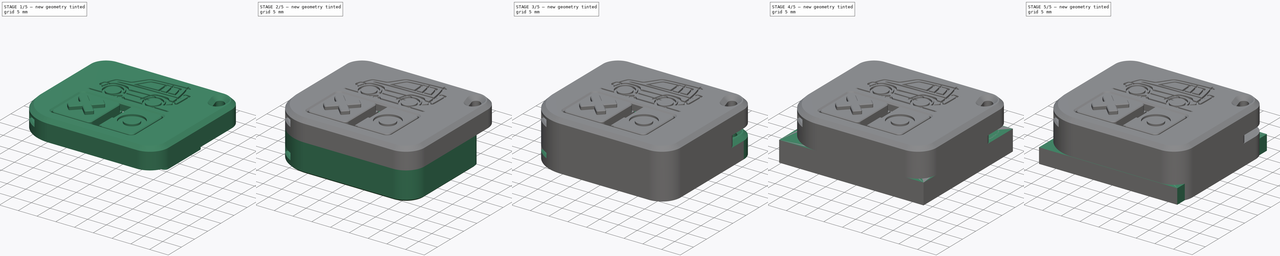
[diagram: build sequence overview — one tinted view per stage of 5, left to right]
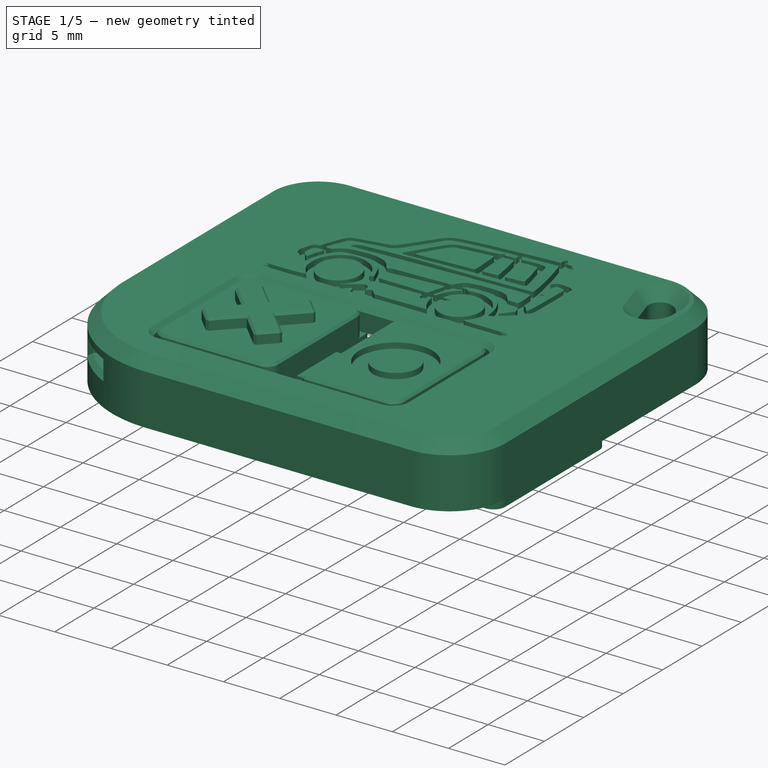
[diagram: stage 1 of 5 — iso view after this stage's code; geometry added in this stage tinted green]
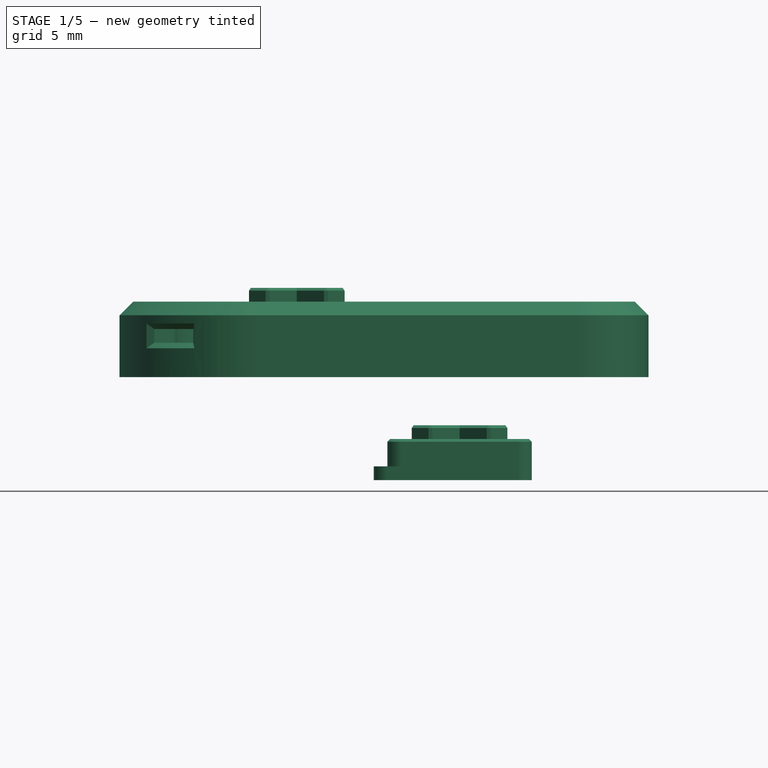
[diagram: stage 1 of 5 — front view after this stage's code; geometry added in this stage tinted green]
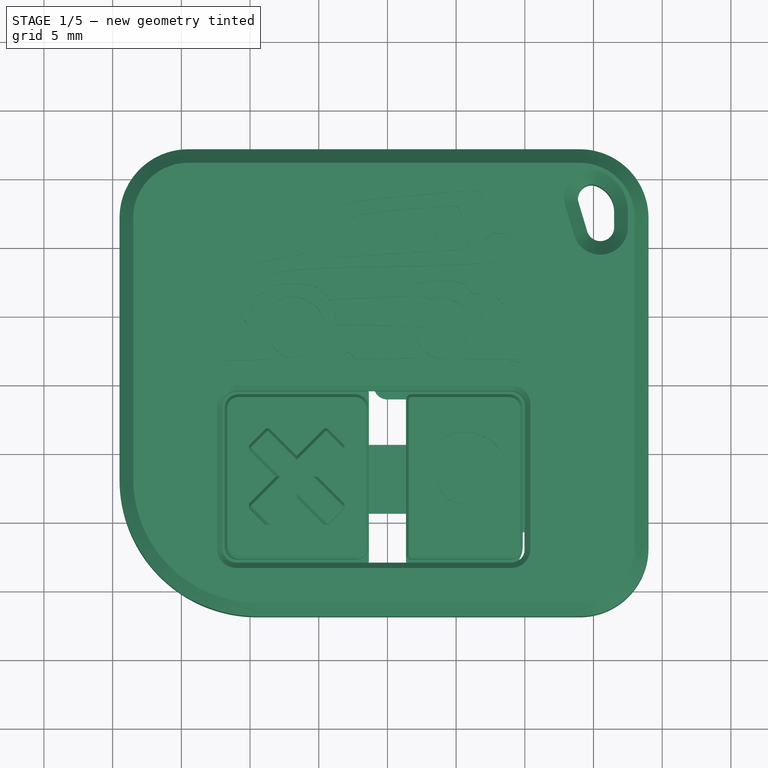
[diagram: stage 1 of 5 — top view after this stage's code; geometry added in this stage tinted green]
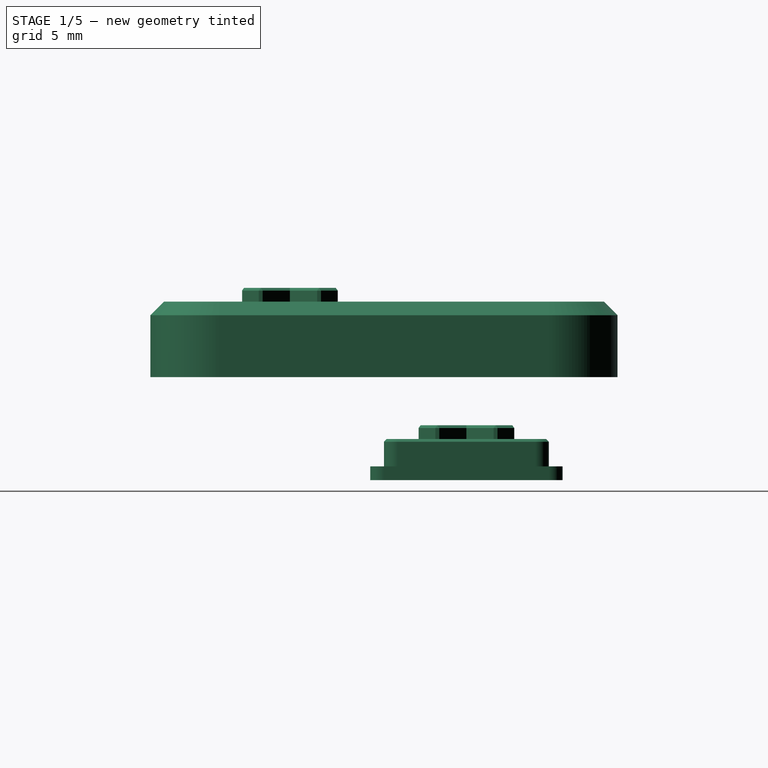
[diagram: stage 1 of 5 — right view after this stage's code; geometry added in this stage tinted green]
FCSTD DOCUMENT  (FreeCAD 0.19R24291 (Git))
Label: key
License: All rights reserved
LicenseURL: http://en.wikipedia.org/wiki/All_rights_reserved
objects: Sketcher::SketchObject×22, PartDesign::Fillet×21, PartDesign::Pad×15, PartDesign::Pocket×12, PartDesign::Chamfer×11, Part::Feature×10, PartDesign::Body×7, Part::Cut×3, PartDesign::FeatureBase×3, Part::Extrusion×2, Part::Box×1, Part::MultiFuse×1
note: 167 computed .brp shape members not serialized (recipe doc carries the construction recipe); baked Part::Feature solids carry a one-line shape summary decoded from their .brp

FEATURE [Sketcher::SketchObject] Sketch015
  FullyConstrained = true
  MapMode = 5
  Support = -> [XY_Plane005]
  sketch-geometry (4):
    g0: LineSegment StartX=0 StartY=0 StartZ=0 EndX=10.5 EndY=0 EndZ=0
    g1: LineSegment StartX=10.5 StartY=0 StartZ=0 EndX=10.5 EndY=12 EndZ=0
    g2: LineSegment StartX=10.5 StartY=12 StartZ=0 EndX=0 EndY=12 EndZ=0
    g3: LineSegment StartX=0 StartY=12 StartZ=0 EndX=0 EndY=0 EndZ=0
  constraints (11):
    c: Coincident(g0,g1)
    c: Coincident(g1,g2)
    c: Coincident(g2,g3)
    c: Coincident(g3,g0)
    c: Horizontal(g0)
    c: Horizontal(g2)
    c: Vertical(g1)
    c: Vertical(g3)
    c: Coincident(g0,g-1)
    c: DistanceX(g2,g2) = 10.5
    c: DistanceY(g1,g1) = 12
FEATURE [PartDesign::Pad] Pad009
  Direction = (1,1,1)
  Length = 2
  Length2 = 100
  Profile = -> Sketch015
  Type = 0
FEATURE [Sketcher::SketchObject] Sketch016
  FullyConstrained = true
  MapMode = 5
  Placement = pos=(0,0,0) rot=(1,0,0;3.14159rad)
  Support = -> [Pad009]
  sketch-geometry (4):
    g0: LineSegment StartX=-1 StartY=1 StartZ=0 EndX=10.5 EndY=1 EndZ=0
    g1: LineSegment StartX=10.5 StartY=1 StartZ=0 EndX=10.5 EndY=-13 EndZ=0
    g2: LineSegment StartX=10.5 StartY=-13 StartZ=0 EndX=-1 EndY=-13 EndZ=0
    g3: LineSegment StartX=-1 StartY=-13 StartZ=0 EndX=-1 EndY=1 EndZ=0
  constraints (12):
    c: Coincident(g0,g1)
    c: Coincident(g1,g2)
    c: Coincident(g2,g3)
    c: Coincident(g3,g0)
    c: Horizontal(g0)
    c: Horizontal(g2)
    c: Vertical(g1)
    c: Vertical(g3)
    c: DistanceX(g0,g-1) = 1
    c: DistanceX(g0,g0) = 11.5
    c: DistanceY(g-1,g0) = 1
    c: DistanceY(g3,g3) = 14
FEATURE [PartDesign::Pad] Pad010
  BaseFeature = -> Pad009
  Direction = (1,1,1)
  Length = 1
  Length2 = 100
  Profile = -> Sketch016
  Reversed = true
  Type = 0
FEATURE [Sketcher::SketchObject] Sketch017
  FullyConstrained = true
  MapMode = 5
  Placement = pos=(0,0,0) rot=(1,0,0;3.14159rad)
  Support = -> [Pad010]
  sketch-geometry (4):
    g0: LineSegment StartX=0.5 StartY=-0.5 StartZ=0 EndX=10 EndY=-0.5 EndZ=0
    g1: LineSegment StartX=10 StartY=-0.5 StartZ=0 EndX=10 EndY=-11.5 EndZ=0
    g2: LineSegment StartX=10 StartY=-11.5 StartZ=0 EndX=0.5 EndY=-11.5 EndZ=0
    g3: LineSegment StartX=0.5 StartY=-11.5 StartZ=0 EndX=0.5 EndY=-0.5 EndZ=0
  constraints (12):
    c: Coincident(g0,g1)
    c: Coincident(g1,g2)
    c: Coincident(g2,g3)
    c: Coincident(g3,g0)
    c: Horizontal(g0)
    c: Horizontal(g2)
    c: Vertical(g1)
    c: Vertical(g3)
    c: DistanceX(g0,g0) = 9.5
    c: DistanceY(g3,g3) = 11
    c: DistanceX(g-1,g0) = 0.5
    c: DistanceY(g0,g-1) = 0.5
FEATURE [PartDesign::Pocket] Pocket006
  BaseFeature = -> Pad010
  Length = 1
  Length2 = 100
  Profile = -> Sketch017
  Refine = true
  Type = 0
FEATURE [PartDesign::Fillet] Fillet019
  Base = -> Pocket006 [Edge8,Edge2,Edge1,Edge5,Edge30,Edge32,Edge29,Edge34,Edge23,Edge22,Edge16,Edge18]
  BaseFeature = -> Pocket006
  Radius = 1
  SupportTransform = false
FEATURE [PartDesign::Chamfer] Chamfer010
  Angle = 45
  Base = -> Fillet019 [Face26]
  BaseFeature = -> Fillet019
  ChamferType = 0
  FlipDirection = false
  Size = 0.2
  Size2 = 1
  SupportTransform = false
FEATURE [Sketcher::SketchObject] Sketch018
  ExternalGeometry = -> [Chamfer010]
  FullyConstrained = true
  MapMode = 5
  Placement = pos=(0,0,2) rot=(0,0,1;0rad)
  Support = -> [Chamfer010]
  sketch-geometry (1):
    g0: Circle CenterX=5.5 CenterY=6 CenterZ=0 NormalX=0 NormalY=0 NormalZ=1 AngleXU=0 Radius=1.5
  constraints (3):
    c: Radius(g0) = 1.5
    c: DistanceY(g0,g-3) = 6
    c: DistanceX(g-1,g0) = 5.5
FEATURE [PartDesign::Pad] Pad011
  BaseFeature = -> Chamfer010
  Direction = (1,1,1)
  Length = 2.5
  Length2 = 100
  Profile = -> Sketch018
  Refine = true
  Reversed = true
  Type = 0
FEATURE [Sketcher::SketchObject] Sketch019
  FullyConstrained = true
  MapMode = 5
  Placement = pos=(0,0,2) rot=(0,0,1;0rad)
  Support = -> [Pad011]
  sketch-geometry (12):
    g0: LineSegment StartX=3.12868 StartY=9.62132 StartZ=0 EndX=1.62868 EndY=8.12132 EndZ=0
    g1: LineSegment StartX=1.62868 StartY=8.12132 StartZ=0 EndX=3.75 EndY=6 EndZ=0
    g2: LineSegment StartX=3.75 StartY=6 StartZ=0 EndX=1.62868 EndY=3.87868 EndZ=0
    g3: LineSegment StartX=1.62868 StartY=3.87868 StartZ=0 EndX=3.12868 EndY=2.37868 EndZ=0
    g4: LineSegment StartX=3.12868 StartY=2.37868 StartZ=0 EndX=5.25 EndY=4.5 EndZ=0
    g5: LineSegment StartX=5.25 StartY=4.5 StartZ=0 EndX=7.37132 EndY=2.37868 EndZ=0
    g6: LineSegment StartX=7.37132 StartY=2.37868 StartZ=0 EndX=8.87132 EndY=3.87868 EndZ=0
    g7: LineSegment StartX=8.87132 StartY=3.87868 StartZ=0 EndX=6.75 EndY=6 EndZ=0
    g8: LineSegment StartX=6.75 StartY=6 StartZ=0 EndX=8.87132 EndY=8.12132 EndZ=0
    g9: LineSegment StartX=8.87132 StartY=8.12132 StartZ=0 EndX=7.37132 EndY=9.62132 EndZ=0
    g10: LineSegment StartX=7.37132 StartY=9.62132 StartZ=0 EndX=5.25 EndY=7.5 EndZ=0
    g11: LineSegment StartX=5.25 StartY=7.5 StartZ=0 EndX=3.12868 EndY=9.62132 EndZ=0
  constraints (36):
    c: Coincident(g0,g1)
    c: Coincident(g1,g2)
    c: Coincident(g2,g3)
    c: Coincident(g3,g4)
    c: Coincident(g4,g5)
    c: Coincident(g5,g6)
    c: Coincident(g6,g7)
    c: Coincident(g7,g8)
    c: Coincident(g8,g9)
    c: Coincident(g9,g10)
    c: Coincident(g10,g11)
    c: Coincident(g11,g0)
    c: Parallel(g7,g11)
    c: Parallel(g11,g5)
    c: Parallel(g5,g1)
    c: Parallel(g2,g4)
    c: Parallel(g4,g10)
    c: Parallel(g10,g8)
    c: Parallel(g3,g9)
    c: Parallel(g0,g6)
    c: Perpendicular(g10,g11)
    c: Perpendicular(g11,g0)
    c: Perpendicular(g9,g10)
    c: Equal(g11,g1)
    c: Equal(g1,g2)
    c: Equal(g2,g4)
    c: Equal(g4,g5)
    c: Equal(g5,g7)
    c: Equal(g7,g8)
    c: Equal(g8,g10)
    c: Equal(g3,g6)
    c: Horizontal(g1,g7)
    c: DistanceY(g4,g10) = 3
    c: Distance(g2) = 3
    c: DistanceX(g-1,g4) = 5.25
    c: DistanceY(g-1,g1) = 6
FEATURE [PartDesign::Pocket] Pocket007
  BaseFeature = -> Pad011
  Length = 0.5
  Length2 = 100
  Profile = -> Sketch019
  Type = 0
FEATURE [PartDesign::Pad] Pad015
  BaseFeature = -> Pocket007
  Direction = (1,1,1)
  Length = 1
  Length2 = 100
  Profile = -> Pocket007 [Face12,Face11,Face48,Face34,Face3,Face10,Face30,Face31,Face32,Face33]
  Type = 0
FEATURE [PartDesign::Body] Body001005  label="open-btn"
  Group = -> [Sketch011,Pad006,Sketch012,Pad007,Sketch013,Pocket005,Fillet014,Fillet015,Fillet016,Fillet017,Fillet018,Sketch014,Pad008,Chamfer011,Sketch020,Pocket008,Pad016,Pocket012]
  Origin = -> Origin004
  Placement = pos=(1.35,-12.85,10) rot=(0,0,1;0rad)
  Tip = -> Pocket012
FEATURE [PartDesign::Pocket] Pocket013
  BaseFeature = -> Pad015
  Length = 0.5
  Length2 = 100
  Profile = -> Pad015 [Face69]
  Refine = true
  Type = 0
FEATURE [PartDesign::Body] Body001010002  label="back-casing-mitsubishi"
  BaseFeature = -> Chamfer013
  Group = -> [Clone,Sketch029,Pocket015]
  Origin = -> Origin008
  Tip = -> Pocket015
FEATURE [Part::Feature] Body001010003  label="front-casing001"
  Placement = pos=(0,0,7.5) rot=(0,0,1;0rad)
  shape: bbox 38.5 x 34 x 6.005 mm, 103 faces (baked)
FEATURE [Part::Cut] Cut002  label="front-casing-pajero-mini"
  Base = -> Body001010003
  Tool = -> pajeromini_icon_6_001001_solid
FEATURE [PartDesign::Pad] Pad017
  BaseFeature = -> Pocket013
  Direction = (1,1,1)
  Length = 1.5
  Length2 = 100
  Profile = -> Pocket013 [Face35]
  Type = 0
FEATURE [PartDesign::Chamfer] Chamfer018
  Angle = 45
  Base = -> Pad017 [Face49,Edge107,Edge109,Edge113,Edge115,Edge119,Edge121,Edge104,Edge102]
  BaseFeature = -> Pad017
  ChamferType = 0
  FlipDirection = false
  Size = 0.2
  Size2 = 1
  SupportTransform = false
FEATURE [PartDesign::Body] Body001006  label="close-btn"
  Group = -> [Sketch015,Pad009,Sketch016,Pad010,Sketch017,Pocket006,Fillet019,Chamfer010,Sketch018,Pad011,Sketch019,Pocket007,Pad015,Pocket013,Pad017,Chamfer018]
  Origin = -> Origin005
  Placement = pos=(-11.85,-12.85,10) rot=(0,0,1;0rad)
  Tip = -> Chamfer018
FEATURE [Part::Feature] Body001005001  label="open-btn001"
  Placement = pos=(1.35,-12.85,10) rot=(0,0,1;0rad)
  shape: bbox 9.5 x 14 x 3 mm, 54 faces (baked)
FEATURE [Part::Feature] Body001006001  label="close-btn001"
  Placement = pos=(-11.85,-12.85,10) rot=(0,0,1;0rad)
  shape: bbox 11.5 x 14 x 4 mm, 78 faces (baked)
FEATURE [Part::Box] Box  label="Cube"
  AttacherType = Attacher::AttachEngine3D
  Height = 1
  Length = 3
  Placement = pos=(-1.5,-9.5,10) rot=(0,0,1;0rad)
  Width = 5
FEATURE [Part::MultiFuse] Fusion  label="button-combined"
  Refine = true
  Shapes = -> [Box,Body001006001,Body001005001]
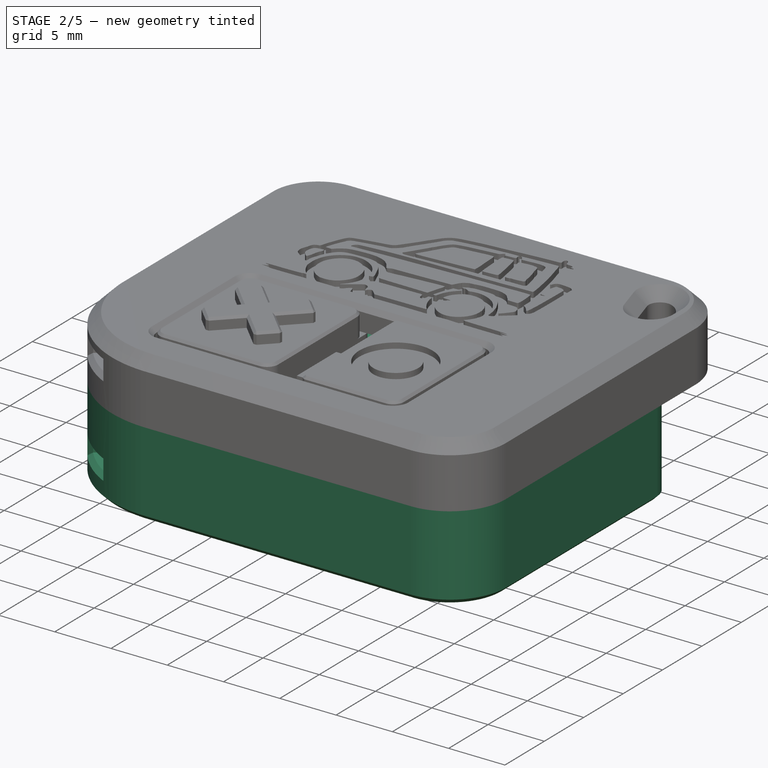
[diagram: stage 2 of 5 — iso view after this stage's code; geometry added in this stage tinted green]
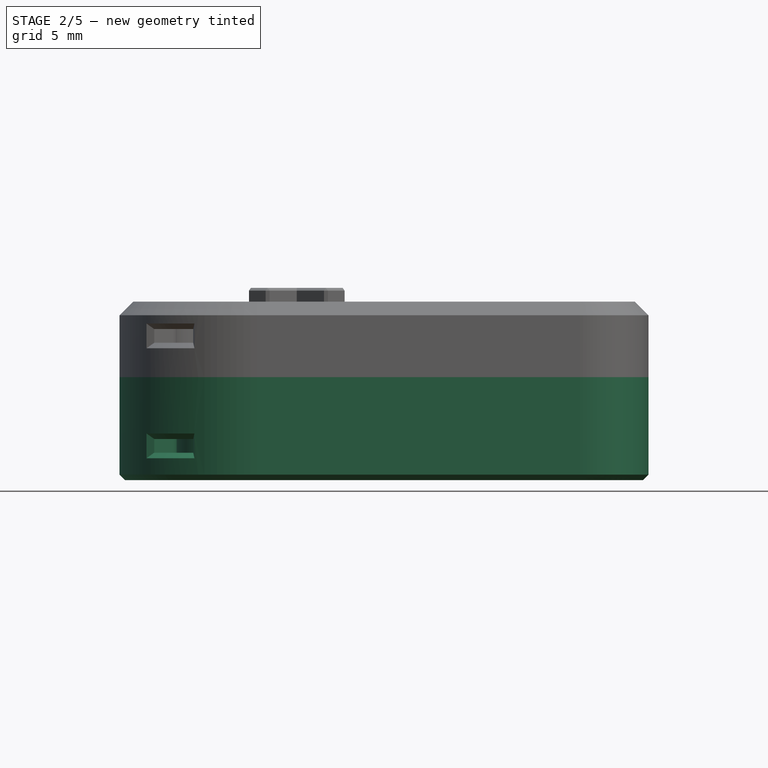
[diagram: stage 2 of 5 — front view after this stage's code; geometry added in this stage tinted green]
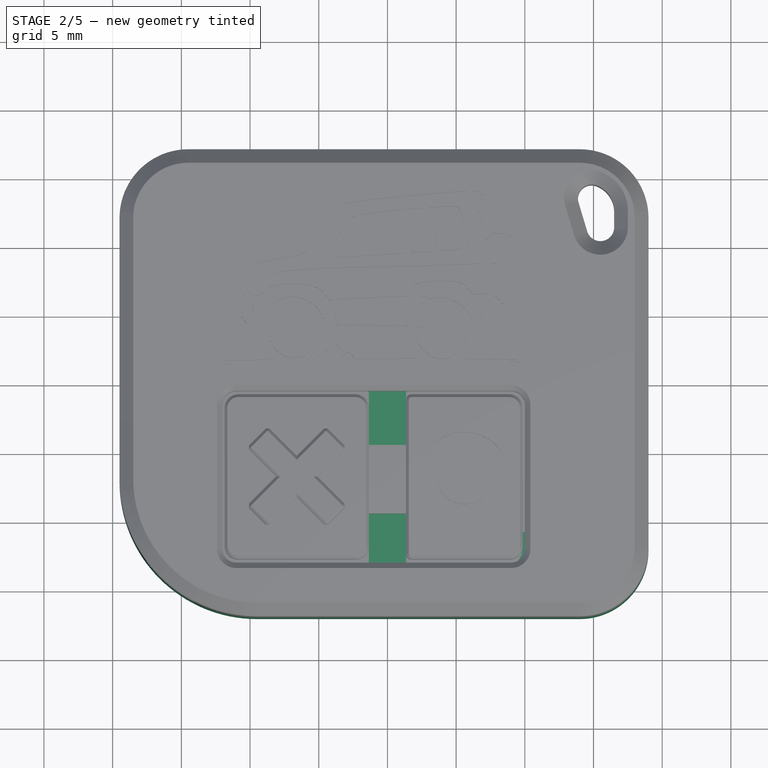
[diagram: stage 2 of 5 — top view after this stage's code; geometry added in this stage tinted green]
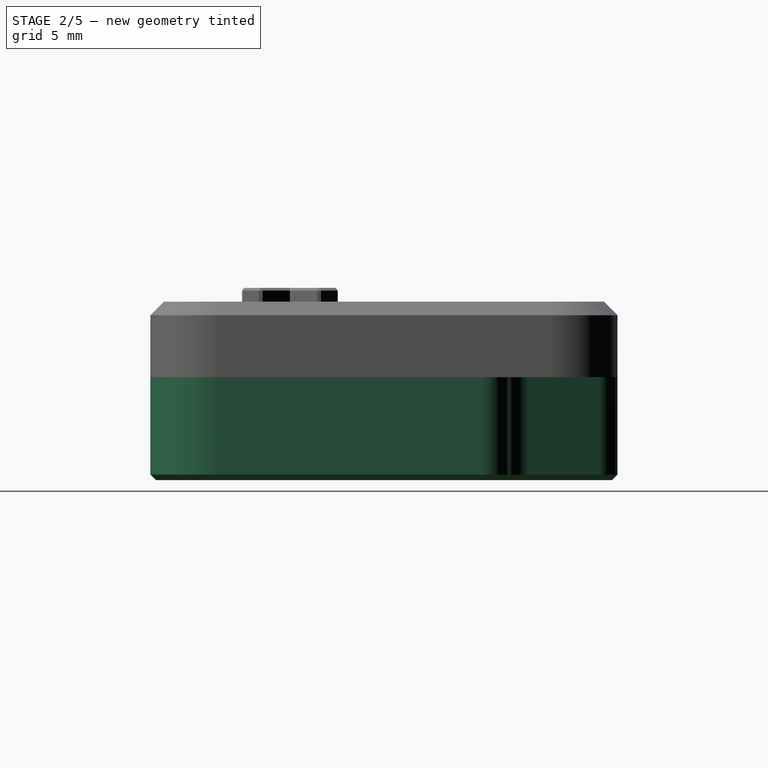
[diagram: stage 2 of 5 — right view after this stage's code; geometry added in this stage tinted green]
FEATURE [Part::Feature] Cut_cs  label="hole-profile"
  shape: bbox 30.95 x 28.2 x 3e-07 mm, 0 faces, 0 solids (baked)
FEATURE [Part::Feature] Cut_cs001  label="hole-profile001"
  shape: bbox 30.95 x 28.2 x 3e-07 mm, 0 faces, 0 solids (baked)
FEATURE [Part::Extrusion] Extrude
  Base = -> Cut_cs001
  Dir = (0,0,1)
  DirMode = 2
  FaceMakerClass = Part::FaceMakerBullseye
  LengthFwd = 5.5
  LengthRev = 0
  Placement = pos=(0,0,2) rot=(0,0,1;0rad)
  Solid = true
  Symmetric = false
FEATURE [PartDesign::Body] Body001  label="casing-common"
  Group = -> [Sketch002,Pad002,Fillet005,Fillet006,Fillet007,Fillet008,Fillet009]
  Origin = -> Origin001
  Tip = -> Fillet009
FEATURE [Part::Feature] Cut_cs002  label="hole-profile002"
  shape: bbox 30.95 x 28.2 x 3e-07 mm, 0 faces, 0 solids (baked)
FEATURE [Part::Extrusion] Extrude001
  Base = -> Cut_cs002
  Dir = (0,0,1)
  DirMode = 2
  FaceMakerClass = Part::FaceMakerBullseye
  LengthFwd = 3.5
  LengthRev = 0
  Solid = true
  Symmetric = false
FEATURE [Part::Feature] Body001007  label="casing-common003"
  shape: bbox 38.5 x 34 x 8.418 mm, 17 faces (baked)
FEATURE [Part::Cut] Cut  label="back-base"
  Base = -> Body001007
  Tool = -> Extrude
FEATURE [Part::Feature] Body001008  label="casing-common004"
  shape: bbox 38.5 x 34 x 6.173 mm, 17 faces (baked)
FEATURE [PartDesign::FeatureBase] BaseFeature
  BaseFeature = -> Cut
FEATURE [Sketcher::SketchObject] Sketch021
  ExternalGeometry = -> [BaseFeature]
  FullyConstrained = true
  MapMode = 5
  Placement = pos=(0,0,0) rot=(1,0,0;3.14159rad)
  Support = -> [BaseFeature]
  sketch-geometry (7):
    g0: ArcOfCircle CenterX=14 CenterY=-12 CenterZ=0 NormalX=0 NormalY=0 NormalZ=1 AngleXU=0 Radius=5 StartAngle=4.71239 EndAngle=6.28319
    g1: LineSegment StartX=14.5422 StartY=-11.0261 StartZ=0 EndX=13.9069 EndY=-13.1438 EndZ=0
    g2: LineSegment StartX=13.9069 StartY=-13.1438 StartZ=0 EndX=12.75 EndY=-17 EndZ=0
    g3: LineSegment StartX=12.75 StartY=-17 StartZ=0 EndX=14 EndY=-17 EndZ=0
    g4: LineSegment StartX=14.5422 StartY=-11.0261 StartZ=0 EndX=15.1169 EndY=-9.11044 EndZ=0
    g5: LineSegment StartX=15.1169 StartY=-9.11044 StartZ=0 EndX=19 EndY=-9.11044 EndZ=0
    g6: LineSegment StartX=19 StartY=-9.11044 StartZ=0 EndX=19 EndY=-12 EndZ=0
  constraints (18):
    c: Coincident(g0,g-6)
    c: Coincident(g0,g-6)
    c: Coincident(g0,g-6)
    c: Coincident(g1,g-3)
    c: Coincident(g1,g-3)
    c: Coincident(g2,g1)
    c: PointOnObject(g2,g-5)
    c: Parallel(g2,g1)
    c: Coincident(g3,g2)
    c: Coincident(g3,g0)
    c: Coincident(g4,g1)
    c: Coincident(g5,g4)
    c: PointOnObject(g5,g-4)
    c: Coincident(g6,g5)
    c: Coincident(g6,g0)
    c: Parallel(g1,g4)
    c: Distance(g4) = 2
    c: Horizontal(g5)
FEATURE [PartDesign::Pocket] Pocket
  BaseFeature = -> BaseFeature
  Length = 5
  Length2 = 100
  Profile = -> Sketch021
  Type = 1
FEATURE [PartDesign::Fillet] Fillet020
  Base = -> Pocket [Edge24,Edge31,Edge26]
  BaseFeature = -> Pocket
  Radius = 2
  SupportTransform = false
FEATURE [Sketcher::SketchObject] Sketch022
  ExternalGeometry = -> [Fillet020]
  FullyConstrained = true
  MapMode = 5
  Placement = pos=(0,0,0) rot=(1,0,0;3.14159rad)
  Support = -> [Fillet020]
  sketch-geometry (4):
    g0: Circle CenterX=14.5 CenterY=13 CenterZ=0 NormalX=0 NormalY=0 NormalZ=1 AngleXU=0 Radius=1.15
    g1: Circle CenterX=14.5 CenterY=13 CenterZ=0 NormalX=0 NormalY=0 NormalZ=1 AngleXU=0 Radius=2.5
    g2: Circle CenterX=-15.5 CenterY=-13 CenterZ=0 NormalX=0 NormalY=0 NormalZ=1 AngleXU=0 Radius=2.5
    g3: Circle CenterX=-15.5 CenterY=-13 CenterZ=0 NormalX=0 NormalY=0 NormalZ=1 AngleXU=0 Radius=1.15
  constraints (8):
    c: Coincident(g0,g-3)
    c: Coincident(g1,g0)
    c: Coincident(g2,g-4)
    c: Coincident(g3,g2)
    c: Radius(g3) = 1.15
    c: Radius(g2) = 2.5
    c: Equal(g3,g0)
    c: Equal(g2,g1)
FEATURE [PartDesign::Pad] Pad012
  BaseFeature = -> Fillet020
  Direction = (1,1,1)
  Length = 10
  Length2 = 100
  Profile = -> Sketch022
  Reversed = true
  Type = 3
  UpToFace = -> Fillet020 [Face18]
FEATURE [Sketcher::SketchObject] Sketch023
  ExternalGeometry = -> [Pad012]
  FullyConstrained = true
  MapMode = 5
  Placement = pos=(0,0,0) rot=(1,0,0;3.14159rad)
  Support = -> [Pad012]
  sketch-geometry (2):
    g0: Circle CenterX=14.5 CenterY=13 CenterZ=0 NormalX=0 NormalY=0 NormalZ=1 AngleXU=0 Radius=2
    g1: Circle CenterX=-15.5 CenterY=-13 CenterZ=0 NormalX=0 NormalY=0 NormalZ=1 AngleXU=0 Radius=2
  constraints (4):
    c: Coincident(g0,g-4)
    c: Coincident(g1,g-3)
    c: Radius(g1) = 2
    c: Equal(g1,g0)
FEATURE [PartDesign::Pocket] Pocket009
  BaseFeature = -> Pad012
  Length = 2.5
  Length2 = 100
  Profile = -> Sketch023
  Refine = true
  Type = 0
FEATURE [PartDesign::Chamfer] Chamfer012
  Angle = 45
  Base = -> Pocket009 [Face12,Edge42,Edge47]
  BaseFeature = -> Pocket009
  ChamferType = 0
  FlipDirection = false
  Size = 0.4
  Size2 = 1
  SupportTransform = false
FEATURE [Sketcher::SketchObject] Sketch024
  FullyConstrained = true
  MapMode = 5
  Placement = pos=(0,0,2) rot=(0,0,1;0rad)
  Support = -> [Chamfer012]
  sketch-geometry (3):
    g0: LineSegment StartX=0 StartY=0 StartZ=0 EndX=-19.8338 EndY=-15.219 EndZ=0
    g1: LineSegment StartX=-19.8338 StartY=-15.219 StartZ=0 EndX=-16.8898 EndY=-18.4319 EndZ=0
    g2: LineSegment StartX=-16.8898 StartY=-18.4319 StartZ=0 EndX=0 EndY=0 EndZ=0
  constraints (8):
    c: Coincident(g-1,g0)
    c: Coincident(g0,g1)
    c: Coincident(g1,g2)
    c: Coincident(g2,g0)
    c: Equal(g0,g2)
    c: Angle(g0,g2) = 0.174533
    c: Angle(g0,g-1) = 2.48709
    c: Distance(g0) = 25
FEATURE [PartDesign::Pocket] Pocket010
  BaseFeature = -> Chamfer012
  Length = 1
  Length2 = 100
  Profile = -> Sketch024
  Refine = true
  Reversed = true
  Type = 0
FEATURE [PartDesign::Fillet] Fillet021
  Base = -> Pocket010 [Edge107,Edge105]
  BaseFeature = -> Pocket010
  Radius = 1
  SupportTransform = false
FEATURE [PartDesign::Chamfer] Chamfer013
  Angle = 45
  Base = -> Fillet021 [Edge69,Edge13,Edge73,Edge37]
  BaseFeature = -> Fillet021
  ChamferType = 0
  FlipDirection = false
  Size = 0.4
  Size2 = 1
  SupportTransform = false
FEATURE [PartDesign::Body] Body001010  label="front-casing"
  BaseFeature = -> Cut001
  Group = -> [BaseFeature001,Sketch025,Pad013,Sketch026,Pad014,Fillet022,Sketch027,Pocket011,Fillet023,Chamfer014,Chamfer015,Chamfer016,Sketch028,Pocket014,Fillet024,Chamfer017]
  Origin = -> Origin007
  Placement = pos=(0,0,7.5) rot=(0,0,1;0rad)
  Tip = -> Chamfer017
FEATURE [PartDesign::FeatureBase] Clone
  BaseFeature = -> Chamfer013
FEATURE [Sketcher::SketchObject] Sketch029
  FullyConstrained = true
  MapMode = 5
  Placement = pos=(0,0,0) rot=(1,0,0;3.14159rad)
  Support = -> [Clone]
  sketch-geometry (18):
    g0: Circle CenterX=0 CenterY=0 CenterZ=0 NormalX=0 NormalY=0 NormalZ=1 AngleXU=0 Radius=12.5
    g1: Circle CenterX=0 CenterY=0 CenterZ=0 NormalX=0 NormalY=0 NormalZ=1 AngleXU=0 Radius=6.5
    g2: Circle CenterX=0 CenterY=0 CenterZ=0 NormalX=0 NormalY=0 NormalZ=1 AngleXU=0 Radius=0.1
    g3: LineSegment StartX=0 StartY=0 StartZ=0 EndX=0 EndY=-0.1 EndZ=0
    g4: LineSegment StartX=0 StartY=-0.1 StartZ=0 EndX=0 EndY=-6.5 EndZ=0
    g5: LineSegment StartX=0 StartY=-6.5 StartZ=0 EndX=0 EndY=-12.5 EndZ=0
    g6: LineSegment StartX=-0.1 StartY=0 StartZ=0 EndX=-6.5 EndY=0 EndZ=0
    g7: LineSegment StartX=0.1 StartY=0 StartZ=0 EndX=6.5 EndY=0 EndZ=0
    g8: LineSegment StartX=-6.5 StartY=0 StartZ=0 EndX=-11.1827 EndY=5.58536 EndZ=0
    g9: LineSegment StartX=-11.1827 StartY=5.58536 StartZ=0 EndX=-3.32471 EndY=5.58536 EndZ=0
    g10: LineSegment StartX=-0.1 StartY=0 StartZ=0 EndX=-3.32471 EndY=5.58536 EndZ=0
    g11: LineSegment StartX=0.1 StartY=0 StartZ=0 EndX=3.32471 EndY=5.58536 EndZ=0
    g12: LineSegment StartX=3.32471 StartY=5.58536 StartZ=0 EndX=11.1827 EndY=5.58536 EndZ=0
    g13: LineSegment StartX=11.1827 StartY=5.58536 StartZ=0 EndX=6.5 EndY=0 EndZ=0
    g14: LineSegment StartX=0 StartY=-0.1 StartZ=0 EndX=-3.2066 EndY=-5.654 EndZ=0
    g15: LineSegment StartX=0 StartY=-0.1 StartZ=0 EndX=3.2066 EndY=-5.654 EndZ=0
    g16: LineSegment StartX=-3.2066 StartY=-5.654 StartZ=0 EndX=0 EndY=-12.5 EndZ=0
    g17: LineSegment StartX=0 StartY=-12.5 StartZ=0 EndX=3.2066 EndY=-5.654 EndZ=0
  constraints (49):
    c: Coincident(g0,g-1)
    c: Coincident(g1,g-1)
    c: Coincident(g2,g-1)
    c: Radius(g2) = 0.1
    c: Radius(g0) = 12.5
    c: Radius(g1) = 6.5
    c: Coincident(g3,g-1)
    c: PointOnObject(g3,g2)
    c: Coincident(g4,g3)
    c: PointOnObject(g4,g1)
    c: Coincident(g5,g4)
    c: PointOnObject(g5,g0)
    c: Vertical(g5)
    c: Vertical(g3)
    c: Vertical(g4)
    c: PointOnObject(g6,g2)
    c: PointOnObject(g6,g1)
    c: Horizontal(g6)
    c: PointOnObject(g7,g2)
    c: PointOnObject(g7,g1)
    c: Horizontal(g7)
    c: Coincident(g8,g6)
    c: PointOnObject(g8,g0)
    c: Coincident(g9,g8)
    c: PointOnObject(g9,g1)
    c: Coincident(g10,g6)
    c: Coincident(g10,g9)
    c: Coincident(g11,g7)
    c: PointOnObject(g11,g1)
    c: Coincident(g12,g11)
    c: PointOnObject(g12,g0)
    c: Coincident(g13,g12)
    c: Coincident(g13,g7)
    c: Coincident(g14,g3)
    c: PointOnObject(g14,g1)
    c: Coincident(g15,g14)
    c: PointOnObject(g15,g1)
    c: Coincident(g16,g14)
    c: Coincident(g16,g5)
    c: Coincident(g17,g16)
    c: Coincident(g17,g15)
    c: Horizontal(g9)
    c: Horizontal(g12)
    c: Horizontal(g6,g-1)
    c: Horizontal(g7,g-1)
    c: Horizontal(g11,g9)
    c: Parallel(g11,g14)
    c: Equal(g14,g15)
    c: Angle(g-1,g11) = 1.0472
FEATURE [PartDesign::Pocket] Pocket015
  BaseFeature = -> Clone
  Length = 0.5
  Length2 = 100
  Profile = -> Sketch029
  Type = 0
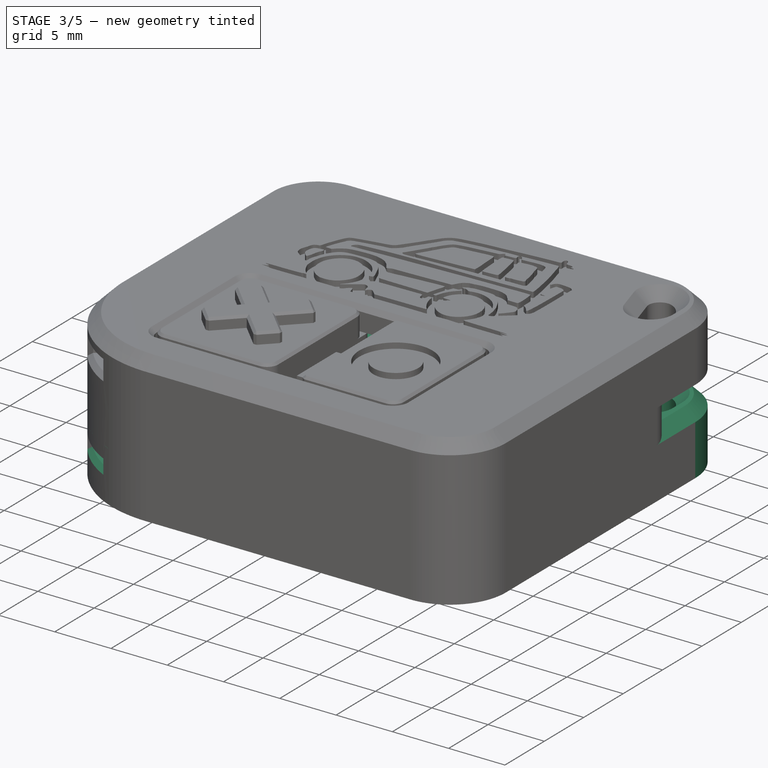
[diagram: stage 3 of 5 — iso view after this stage's code; geometry added in this stage tinted green]
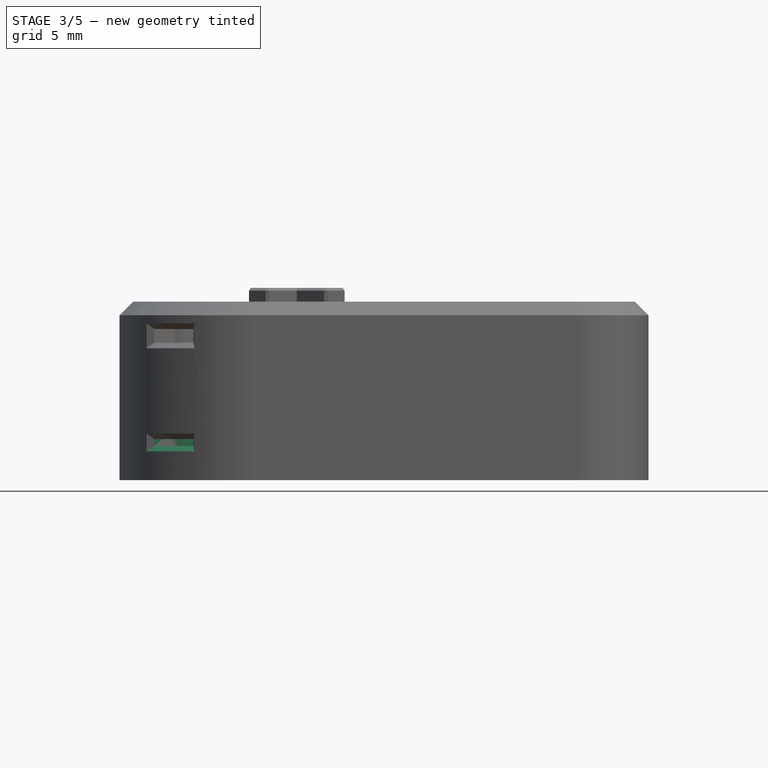
[diagram: stage 3 of 5 — front view after this stage's code; geometry added in this stage tinted green]
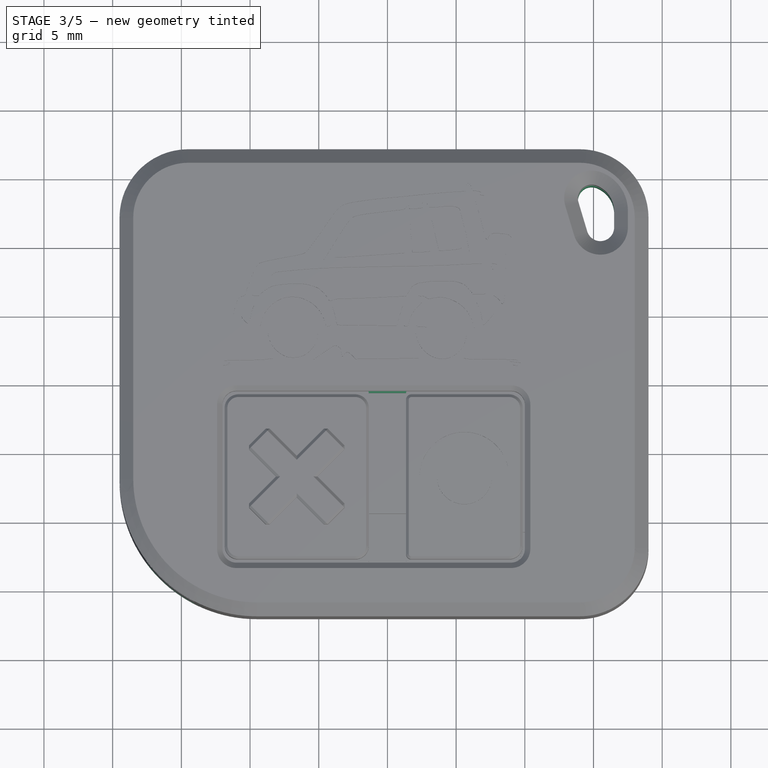
[diagram: stage 3 of 5 — top view after this stage's code; geometry added in this stage tinted green]
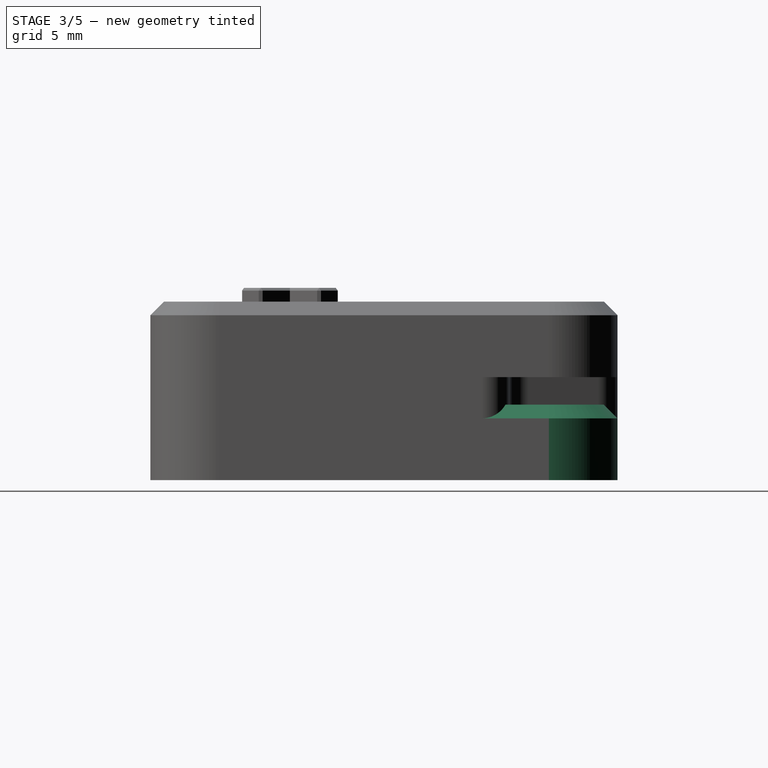
[diagram: stage 3 of 5 — right view after this stage's code; geometry added in this stage tinted green]
FEATURE [PartDesign::Body] Body001009  label="back-casing"
  BaseFeature = -> Cut
  Group = -> [BaseFeature,Sketch021,Pocket,Fillet020,Sketch022,Pad012,Sketch023,Pocket009,Chamfer012,Sketch024,Pocket010,Fillet021,Chamfer013]
  Origin = -> Origin006
  Tip = -> Chamfer013
FEATURE [Part::Cut] Cut001  label="front-base"
  Base = -> Body001008
  Tool = -> Extrude001
FEATURE [PartDesign::FeatureBase] BaseFeature001
  BaseFeature = -> Cut001
FEATURE [Sketcher::SketchObject] Sketch025
  ExternalGeometry = -> [BaseFeature001]
  FullyConstrained = true
  MapMode = 5
  Placement = pos=(0,0,5.5) rot=(0,0,1;0rad)
  Support = -> [BaseFeature001]
  sketch-geometry (2):
    g0: Circle CenterX=-15.5 CenterY=13 CenterZ=0 NormalX=0 NormalY=0 NormalZ=1 AngleXU=0 Radius=2.5
    g1: Circle CenterX=14.5 CenterY=-13 CenterZ=0 NormalX=0 NormalY=0 NormalZ=1 AngleXU=0 Radius=2.5
  constraints (4):
    c: Coincident(g0,g-3)
    c: Coincident(g1,g-4)
    c: Radius(g0) = 2.5
    c: Equal(g0,g1)
FEATURE [PartDesign::Pad] Pad013
  BaseFeature = -> BaseFeature001
  Direction = (1,1,1)
  Length = 2
  Length2 = 100
  Profile = -> Sketch025
  Refine = true
  Reversed = true
  Type = 0
FEATURE [Sketcher::SketchObject] Sketch026
  ExternalGeometry = -> [Pad013]
  FullyConstrained = true
  MapMode = 5
  Placement = pos=(0,0,3.5) rot=(1,0,0;3.14159rad)
  Support = -> [Pad013]
  sketch-geometry (16):
    g0: LineSegment StartX=-15.475 StartY=10.1 StartZ=0 EndX=-13.475 EndY=10.1 EndZ=0
    g1: LineSegment StartX=-13.475 StartY=10.1 StartZ=0 EndX=-13.475 EndY=1.31282 EndZ=0
    g2: LineSegment StartX=-13.475 StartY=1.31282 StartZ=0 EndX=-15.475 EndY=1.31282 EndZ=0
    g3: LineSegment StartX=-15.475 StartY=1.31282 StartZ=0 EndX=-15.475 EndY=10.1 EndZ=0
    g4: LineSegment StartX=-14.995 StartY=-2.45161 StartZ=0 EndX=-13.059 EndY=-1.94968 EndZ=0
    g5: LineSegment StartX=-13.059 StartY=-1.94968 StartZ=0 EndX=-10.8158 EndY=-10.6019 EndZ=0
    g6: LineSegment StartX=-10.8158 StartY=-10.6019 StartZ=0 EndX=-12.7518 EndY=-11.1038 EndZ=0
    g7: LineSegment StartX=-12.7518 StartY=-11.1038 StartZ=0 EndX=-14.995 EndY=-2.45161 EndZ=0
    g8: LineSegment StartX=-8.87979 StartY=-14.1 StartZ=0 EndX=-8.87979 EndY=-12.1 EndZ=0
    g9: LineSegment StartX=-8.87979 StartY=-12.1 StartZ=0 EndX=8.975 EndY=-12.1 EndZ=0
    g10: LineSegment StartX=8.975 StartY=-12.1 StartZ=0 EndX=8.975 EndY=-14.1 EndZ=0
    g11: LineSegment StartX=8.975 StartY=-14.1 StartZ=0 EndX=-8.87979 EndY=-14.1 EndZ=0
    g12: LineSegment StartX=12.815 StartY=-11.22 StartZ=0 EndX=10.895 EndY=-10.66 EndZ=0
    g13: LineSegment StartX=10.895 StartY=-10.66 StartZ=0 EndX=12.955 EndY=-3.59714 EndZ=0
    g14: LineSegment StartX=12.955 StartY=-3.59714 StartZ=0 EndX=14.875 EndY=-4.15714 EndZ=0
    g15: LineSegment StartX=14.875 StartY=-4.15714 StartZ=0 EndX=12.815 EndY=-11.22 EndZ=0
  constraints (40):
    c: Coincident(g-6,g0)
    c: Horizontal(g0)
    c: Coincident(g0,g1)
    c: Vertical(g1)
    c: Coincident(g1,g2)
    c: Coincident(g2,g-6)
    c: Horizontal(g2)
    c: Coincident(g2,g3)
    c: Coincident(g3,g0)
    c: Coincident(g-5,g4)
    c: Coincident(g4,g5)
    c: Coincident(g5,g6)
    c: Coincident(g6,g-5)
    c: Coincident(g6,g7)
    c: Coincident(g7,g4)
    c: Coincident(g-3,g8)
    c: Vertical(g8)
    c: Coincident(g8,g9)
    c: Horizontal(g9)
    c: Coincident(g9,g10)
    c: Coincident(g10,g-3)
    c: Coincident(g10,g11)
    c: Coincident(g11,g8)
    c: Coincident(g-4,g12)
    c: Coincident(g12,g13)
    c: Coincident(g13,g14)
    c: Coincident(g14,g-4)
    c: Coincident(g14,g15)
    c: Coincident(g15,g12)
    c: Parallel(g4,g6)
    c: Parallel(g5,g7)
    c: Parallel(g8,g10)
    c: Parallel(g12,g14)
    c: Parallel(g13,g15)
    c: Perpendicular(g5,g4)
    c: Perpendicular(g13,g14)
    c: Distance(g0) = 2
    c: Distance(g4) = 2
    c: Distance(g8) = 2
    c: Distance(g12) = 2
FEATURE [PartDesign::Pad] Pad014
  BaseFeature = -> Pad013
  Direction = (1,1,1)
  Length = 3.25
  Length2 = 100
  Profile = -> Sketch026
  Type = 0
FEATURE [PartDesign::Fillet] Fillet022
  Base = -> Pad014 [Edge133,Edge128,Edge130,Edge123,Edge125,Edge118,Edge120,Edge114]
  BaseFeature = -> Pad014
  Radius = 1.99
  SupportTransform = false
FEATURE [Sketcher::SketchObject] Sketch027
  ExternalGeometry = -> [Fillet022]
  FullyConstrained = true
  MapMode = 5
  Placement = pos=(0,0,3.5) rot=(1,0,0;3.14159rad)
  Support = -> [Fillet022]
  sketch-geometry (4):
    g0: LineSegment StartX=-12 StartY=13.1 StartZ=0 EndX=10 EndY=13.1 EndZ=0
    g1: LineSegment StartX=10 StartY=13.1 StartZ=0 EndX=10 EndY=0.6 EndZ=0
    g2: LineSegment StartX=10 StartY=0.6 StartZ=0 EndX=-12 EndY=0.6 EndZ=0
    g3: LineSegment StartX=-12 StartY=0.6 StartZ=0 EndX=-12 EndY=13.1 EndZ=0
  constraints (12):
    c: Coincident(g0,g1)
    c: Coincident(g1,g2)
    c: Coincident(g2,g3)
    c: Coincident(g3,g0)
    c: Horizontal(g0)
    c: Horizontal(g2)
    c: Vertical(g1)
    c: Vertical(g3)
    c: DistanceY(g1,g1) = 12.5
    c: DistanceY(g0,g-3) = 1
    c: DistanceX(g2,g2) = 22
    c: DistanceX(g-1,g1) = 10
FEATURE [PartDesign::Pocket] Pocket011
  BaseFeature = -> Fillet022
  Length = 5
  Length2 = 100
  Profile = -> Sketch027
  Type = 1
FEATURE [PartDesign::Fillet] Fillet023
  Base = -> Pocket011 [Edge114,Edge111,Edge109,Edge112]
  BaseFeature = -> Pocket011
  Radius = 1
  SupportTransform = false
FEATURE [PartDesign::Chamfer] Chamfer014
  Angle = 45
  Base = -> Fillet023 [Edge129]
  BaseFeature = -> Fillet023
  ChamferType = 0
  FlipDirection = false
  Size = 1
  Size2 = 1
  SupportTransform = false
FEATURE [PartDesign::Chamfer] Chamfer015
  Angle = 45
  Base = -> Chamfer014 [Edge9,Edge129,Edge112]
  BaseFeature = -> Chamfer014
  ChamferType = 0
  FlipDirection = false
  Size = 0.4
  Size2 = 1
  SupportTransform = false
FEATURE [PartDesign::Chamfer] Chamfer016
  Angle = 45
  Base = -> Chamfer015 [Edge17]
  BaseFeature = -> Chamfer015
  ChamferType = 0
  FlipDirection = false
  Size = 1
  Size2 = 1
  SupportTransform = false
FEATURE [Part::Feature] pajeromini_icon_5_001001_solid  label="pajeromini_icon"
  Placement = pos=(0,-1,12.5) rot=(0,0,1;0rad)
  shape: bbox 20 x 12.34 x 2 mm, 3194 faces (baked)
FEATURE [Part::Feature] pajeromini_icon_6_001001_solid  label="pajeromini_icon_6_001001 (Solid)"
  Placement = pos=(1,-0.5,12.5) rot=(0,0,1;0rad)
  shape: bbox 21.74 x 13.41 x 2.174 mm, 3211 faces (baked)
FEATURE [Sketcher::SketchObject] Sketch028
  FullyConstrained = true
  MapMode = 5
  Placement = pos=(0,0,3.5) rot=(1,0,0;3.14159rad)
  Support = -> [Chamfer016]
  sketch-geometry (3):
    g0: LineSegment StartX=0 StartY=1.8e-15 StartZ=0 EndX=-16.8898 EndY=18.4319 EndZ=0
    g1: LineSegment StartX=-16.8898 StartY=18.4319 StartZ=0 EndX=-19.8338 EndY=15.219 EndZ=0
    g2: LineSegment StartX=-19.8338 StartY=15.219 StartZ=0 EndX=0 EndY=1.8e-15 EndZ=0
  constraints (8):
    c: Coincident(g-1,g0)
    c: Coincident(g0,g1)
    c: Coincident(g1,g2)
    c: Coincident(g2,g0)
    c: Equal(g0,g2)
    c: Angle(g0,g2) = 0.174533
    c: Distance(g0) = 25
    c: Angle(g-1,g2) = 2.48709
FEATURE [PartDesign::Pocket] Pocket014
  BaseFeature = -> Chamfer016
  Length = 1
  Length2 = 100
  Profile = -> Sketch028
  Reversed = true
  Type = 0
FEATURE [PartDesign::Fillet] Fillet024
  Base = -> Pocket014 [Edge170,Edge174]
  BaseFeature = -> Pocket014
  Radius = 1
  SupportTransform = false
FEATURE [PartDesign::Chamfer] Chamfer017
  Angle = 45
  Base = -> Fillet024 [Edge178,Edge156,Edge65,Edge182]
  BaseFeature = -> Fillet024
  ChamferType = 0
  FlipDirection = false
  Size = 0.4
  Size2 = 1
  SupportTransform = false
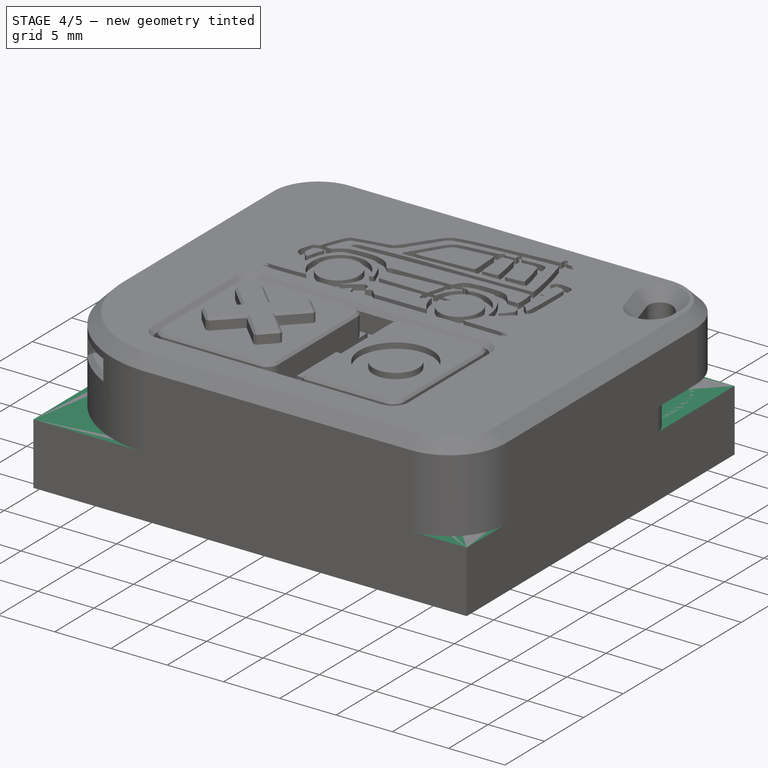
[diagram: stage 4 of 5 — iso view after this stage's code; geometry added in this stage tinted green]
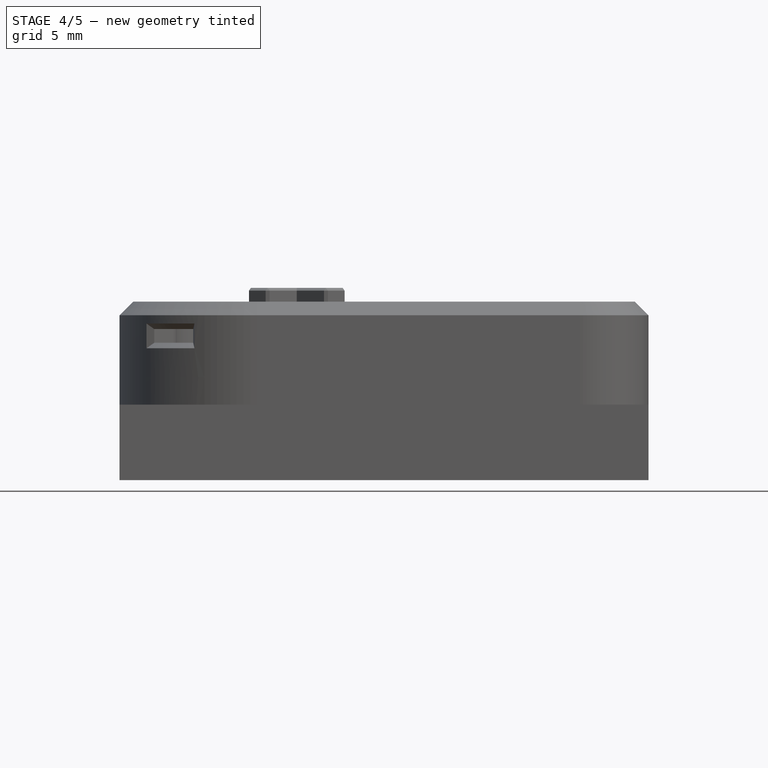
[diagram: stage 4 of 5 — front view after this stage's code; geometry added in this stage tinted green]
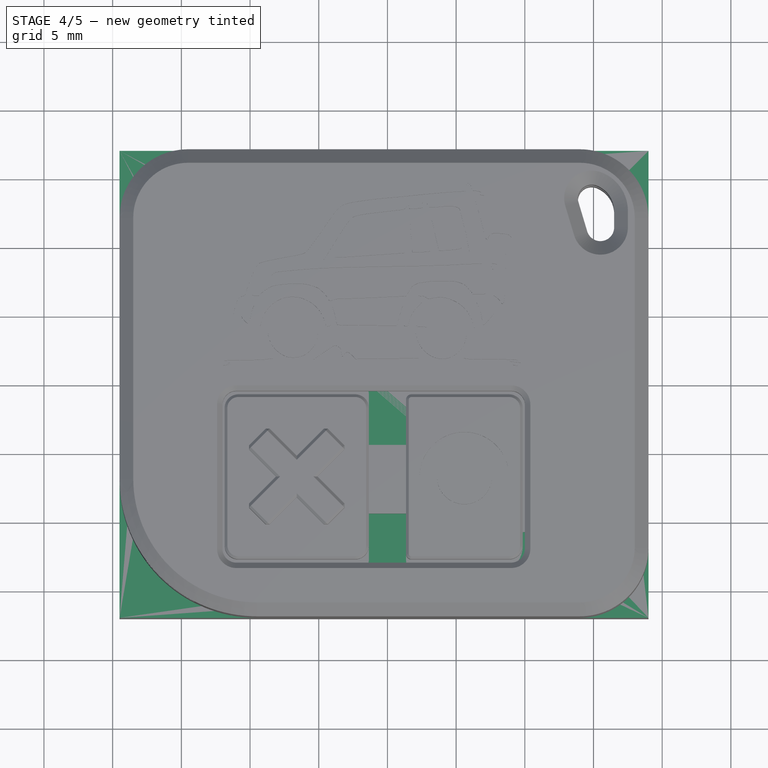
[diagram: stage 4 of 5 — top view after this stage's code; geometry added in this stage tinted green]
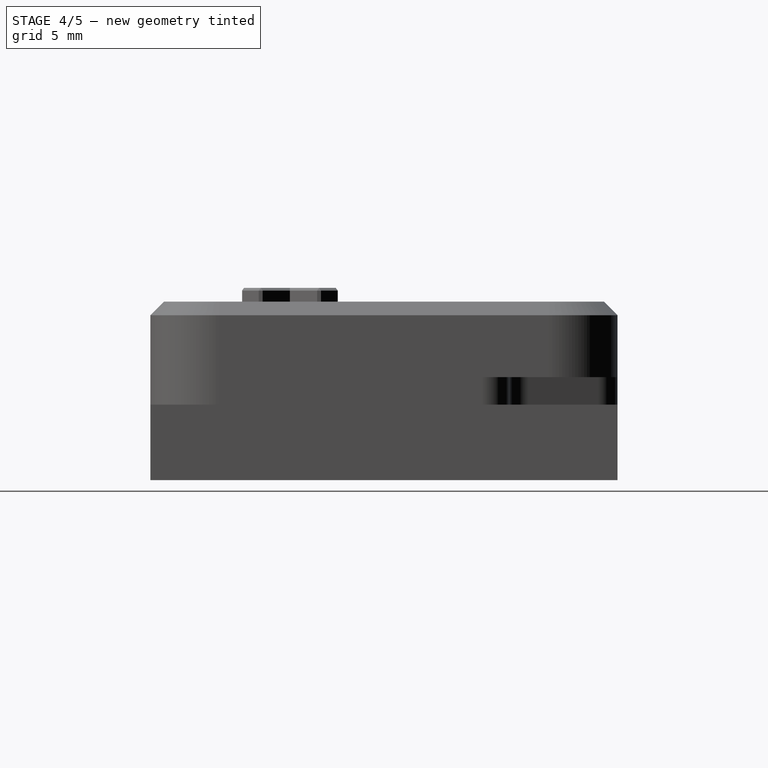
[diagram: stage 4 of 5 — right view after this stage's code; geometry added in this stage tinted green]
FEATURE [PartDesign::Body] Body  label="hole-template"
  Group = -> [Sketch,Pad,Chamfer,Fillet,Chamfer001,Sketch001,Pad001,Fillet001,Fillet002,Fillet003,Fillet004]
  Origin = -> Origin
  Placement = pos=(0,0,-10) rot=(0,0,1;0rad)
  Tip = -> Fillet004
FEATURE [Sketcher::SketchObject] Sketch002
  FullyConstrained = true
  MapMode = 5
  Support = -> [XY_Plane001]
  sketch-geometry (11):
    g0: Circle CenterX=-15.5 CenterY=13 CenterZ=0 NormalX=0 NormalY=0 NormalZ=1 AngleXU=0 Radius=1.7
    g1: Circle CenterX=14.5 CenterY=-13 CenterZ=0 NormalX=0 NormalY=0 NormalZ=1 AngleXU=0 Radius=1.7
    g2: Circle CenterX=-15.5 CenterY=13 CenterZ=0 NormalX=0 NormalY=0 NormalZ=1 AngleXU=0 Radius=3
    g3: Circle CenterX=14.5 CenterY=-13 CenterZ=0 NormalX=0 NormalY=0 NormalZ=1 AngleXU=0 Radius=3
    g4: LineSegment StartX=-19.5 StartY=17 StartZ=0 EndX=19 EndY=17 EndZ=0
    g5: LineSegment StartX=19 StartY=17 StartZ=0 EndX=19 EndY=-17 EndZ=0
    g6: LineSegment StartX=19 StartY=-17 StartZ=0 EndX=-19.5 EndY=-17 EndZ=0
    g7: LineSegment StartX=-19.5 StartY=-17 StartZ=0 EndX=-19.5 EndY=17 EndZ=0
    g8: LineSegment StartX=13.5 StartY=14.5 StartZ=0 EndX=16.5 EndY=14.5 EndZ=0
    g9: LineSegment StartX=16.5 StartY=14.5 StartZ=0 EndX=16.5 EndY=4.5 EndZ=0
    g10: LineSegment StartX=16.5 StartY=4.5 StartZ=0 EndX=13.5 EndY=14.5 EndZ=0
  constraints (31):
    c: Coincident(g2,g0)
    c: Coincident(g3,g1)
    c: Equal(g3,g2)
    c: Equal(g0,g1)
    c: Radius(g0) = 1.7
    c: Radius(g2) = 3
    c: DistanceX(g0,g-1) = 15.5
    c: DistanceY(g-1,g0) = 13
    c: DistanceY(g1,g-1) = 13
    c: DistanceX(g-1,g1) = 14.5
    c: Coincident(g4,g5)
    c: Coincident(g5,g6)
    c: Coincident(g6,g7)
    c: Coincident(g7,g4)
    c: Horizontal(g4)
    c: Horizontal(g6)
    c: Vertical(g5)
    c: Vertical(g7)
    c: DistanceX(g4,g-1) = 19.5
    c: DistanceX(g4,g4) = 38.5
    c: DistanceY(g-1,g4) = 17
    c: DistanceY(g5,g-1) = 17
    c: Horizontal(g8)
    c: Coincident(g8,g9)
    c: Vertical(g9)
    c: Coincident(g9,g10)
    c: Coincident(g10,g8)
    c: DistanceX(g8,g4) = 2.5
    c: DistanceY(g8,g4) = 2.5
    c: DistanceY(g9,g9) = 10
    c: DistanceX(g8,g8) = 3
FEATURE [PartDesign::Pad] Pad002
  Direction = (1,1,1)
  Length = 5.5
  Length2 = 100
  Profile = -> Sketch002
  Type = 0
FEATURE [Sketcher::SketchObject] Sketch011
  FullyConstrained = true
  MapMode = 5
  Support = -> [XY_Plane004]
  sketch-geometry (6):
    g0: LineSegment StartX=0 StartY=13 StartZ=0 EndX=9.5 EndY=13 EndZ=0
    g1: LineSegment StartX=9.5 StartY=13 StartZ=0 EndX=9.5 EndY=2 EndZ=0
    g2: LineSegment StartX=9.5 StartY=2 StartZ=0 EndX=8.5 EndY=2 EndZ=0
    g3: LineSegment StartX=8.5 StartY=2 StartZ=0 EndX=8.5 EndY=-1 EndZ=0
    g4: LineSegment StartX=8.5 StartY=-1 StartZ=0 EndX=0 EndY=-1 EndZ=0
    g5: LineSegment StartX=0 StartY=-1 StartZ=0 EndX=0 EndY=13 EndZ=0
  constraints (18):
    c: PointOnObject(g0,g-2)
    c: Horizontal(g0)
    c: Coincident(g0,g1)
    c: Vertical(g1)
    c: Coincident(g1,g2)
    c: Horizontal(g2)
    c: Coincident(g2,g3)
    c: Vertical(g3)
    c: Coincident(g3,g4)
    c: PointOnObject(g4,g-2)
    c: Coincident(g4,g5)
    c: Coincident(g5,g0)
    c: Horizontal(g4)
    c: DistanceY(g4,g-1) = 1
    c: DistanceY(g-1,g0) = 13
    c: DistanceX(g4,g4) = 8.5
    c: DistanceX(g2,g2) = 1
    c: DistanceY(g3,g3) = 3
FEATURE [PartDesign::Pad] Pad006
  Direction = (1,1,1)
  Length = 1
  Length2 = 100
  Profile = -> Sketch011
  Type = 0
FEATURE [Sketcher::SketchObject] Sketch012
  FullyConstrained = true
  MapMode = 5
  Placement = pos=(0,0,1) rot=(0,0,1;0rad)
  Support = -> [Pad006]
  sketch-geometry (4):
    g0: LineSegment StartX=0 StartY=0 StartZ=0 EndX=8.5 EndY=0 EndZ=0
    g1: LineSegment StartX=8.5 StartY=0 StartZ=0 EndX=8.5 EndY=12 EndZ=0
    g2: LineSegment StartX=8.5 StartY=12 StartZ=0 EndX=0 EndY=12 EndZ=0
    g3: LineSegment StartX=0 StartY=12 StartZ=0 EndX=0 EndY=0 EndZ=0
  constraints (11):
    c: Coincident(g0,g1)
    c: Coincident(g1,g2)
    c: Coincident(g2,g3)
    c: Coincident(g3,g0)
    c: Horizontal(g0)
    c: Horizontal(g2)
    c: Vertical(g1)
    c: Vertical(g3)
    c: Coincident(g0,g-1)
    c: DistanceX(g2,g2) = 8.5
    c: DistanceY(g1,g1) = 12
FEATURE [PartDesign::Pad] Pad007
  BaseFeature = -> Pad006
  Direction = (1,1,1)
  Length = 1
  Length2 = 100
  Profile = -> Sketch012
  Type = 0
FEATURE [Sketcher::SketchObject] Sketch013
  ExternalGeometry = -> [Pad007]
  FullyConstrained = true
  MapMode = 5
  Placement = pos=(0,0,0) rot=(1,0,0;3.14159rad)
  Support = -> [Pad007]
  sketch-geometry (4):
    g0: LineSegment StartX=0.5 StartY=-0.5 StartZ=0 EndX=8 EndY=-0.5 EndZ=0
    g1: LineSegment StartX=8 StartY=-0.5 StartZ=0 EndX=8 EndY=-11.5 EndZ=0
    g2: LineSegment StartX=8 StartY=-11.5 StartZ=0 EndX=0.5 EndY=-11.5 EndZ=0
    g3: LineSegment StartX=0.5 StartY=-11.5 StartZ=0 EndX=0.5 EndY=-0.5 EndZ=0
  constraints (12):
    c: Coincident(g0,g1)
    c: Coincident(g1,g2)
    c: Coincident(g2,g3)
    c: Coincident(g3,g0)
    c: Horizontal(g0)
    c: Horizontal(g2)
    c: Vertical(g1)
    c: Vertical(g3)
    c: DistanceX(g-1,g0) = 0.5
    c: DistanceX(g0,g-6) = 0.5
    c: DistanceY(g0,g-1) = 0.5
    c: DistanceY(g-4,g2) = 0.5
FEATURE [PartDesign::Pocket] Pocket005
  BaseFeature = -> Pad007
  Length = 1
  Length2 = 100
  Profile = -> Sketch013
  Type = 0
FEATURE [PartDesign::Fillet] Fillet014
  Base = -> Pocket005 [Edge42,Edge40]
  BaseFeature = -> Pocket005
  Radius = 1
  SupportTransform = false
FEATURE [PartDesign::Fillet] Fillet015
  Base = -> Fillet014 [Edge28,Edge10]
  BaseFeature = -> Fillet014
  Radius = 0.4
  SupportTransform = false
FEATURE [PartDesign::Fillet] Fillet016
  Base = -> Fillet015 [Edge55,Edge52,Edge54,Edge57]
  BaseFeature = -> Fillet015
  Radius = 1
  SupportTransform = false
FEATURE [PartDesign::Fillet] Fillet017
  Base = -> Fillet016 [Edge42]
  BaseFeature = -> Fillet016
  Radius = 2
  SupportTransform = false
FEATURE [PartDesign::Fillet] Fillet018
  Base = -> Fillet017 [Edge31,Edge18,Edge26,Edge30]
  BaseFeature = -> Fillet017
  Radius = 0.99
  SupportTransform = false
FEATURE [Sketcher::SketchObject] Sketch014
  ExternalGeometry = -> [Fillet018]
  FullyConstrained = true
  MapMode = 5
  Placement = pos=(0,0,2) rot=(0,0,1;0rad)
  Support = -> [Fillet018]
  sketch-geometry (1):
    g0: Circle CenterX=5.5 CenterY=6 CenterZ=0 NormalX=0 NormalY=0 NormalZ=1 AngleXU=0 Radius=1.5
  constraints (3):
    c: Radius(g0) = 1.5
    c: DistanceX(g0,g-3) = 3
    c: DistanceY(g0,g-4) = 6
FEATURE [PartDesign::Pad] Pad008
  BaseFeature = -> Fillet018
  Direction = (1,1,1)
  Length = 2.5
  Length2 = 100
  Profile = -> Sketch014
  Refine = true
  Reversed = true
  Type = 0
FEATURE [PartDesign::Chamfer] Chamfer011
  Angle = 45
  Base = -> Pad008 [Face32]
  BaseFeature = -> Pad008
  ChamferType = 0
  FlipDirection = false
  Size = 0.2
  Size2 = 1
  SupportTransform = false
FEATURE [Sketcher::SketchObject] Sketch020
  FullyConstrained = true
  MapMode = 5
  Placement = pos=(0,0,2) rot=(0,0,1;0rad)
  Support = -> [Chamfer011]
  sketch-geometry (2):
    g0: Circle CenterX=4.25 CenterY=6 CenterZ=0 NormalX=0 NormalY=0 NormalZ=1 AngleXU=0 Radius=3.25
    g1: Circle CenterX=4.25 CenterY=6 CenterZ=0 NormalX=0 NormalY=0 NormalZ=1 AngleXU=0 Radius=2
  constraints (5):
    c: Coincident(g1,g0)
    c: DistanceX(g-1,g0) = 4.25
    c: DistanceY(g-1,g0) = 6
    c: Radius(g1) = 2
    c: Radius(g0) = 3.25
FEATURE [PartDesign::Pocket] Pocket008
  BaseFeature = -> Chamfer011
  Length = 0.5
  Length2 = 100
  Profile = -> Sketch020
  Type = 0
FEATURE [PartDesign::Pad] Pad016
  BaseFeature = -> Pocket008
  Direction = (1,1,1)
  Length = 1
  Length2 = 100
  Profile = -> Pocket008 [Face19,Face18,Face7,Face8,Face39,Face43,Face3,Face9,Face20,Face22,Face21]
  Type = 0
FEATURE [PartDesign::Pocket] Pocket012
  BaseFeature = -> Pad016
  Length = 0.5
  Length2 = 100
  Profile = -> Pad016 [Face51]
  Type = 0
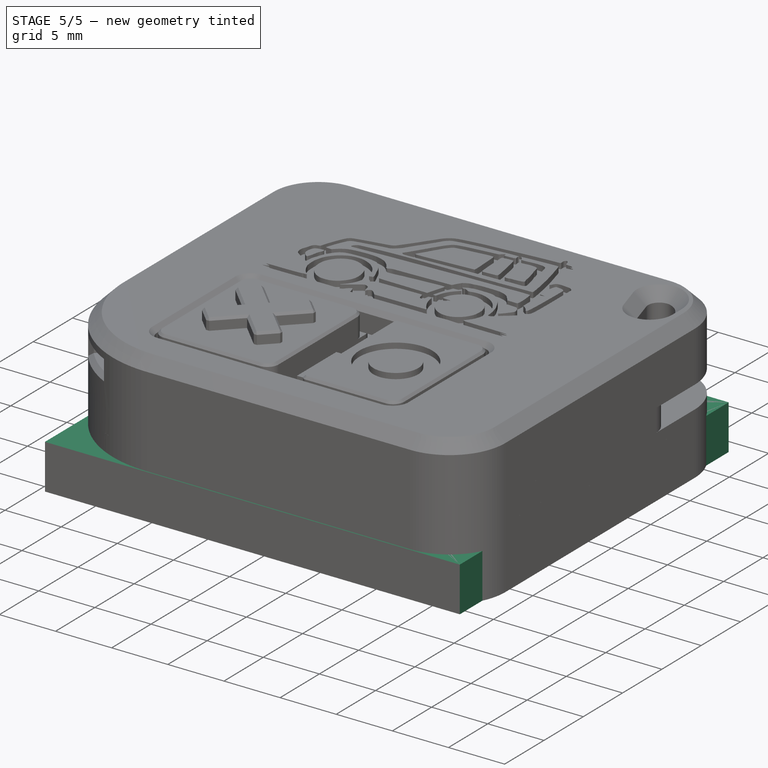
[diagram: stage 5 of 5 — iso view after this stage's code; geometry added in this stage tinted green]
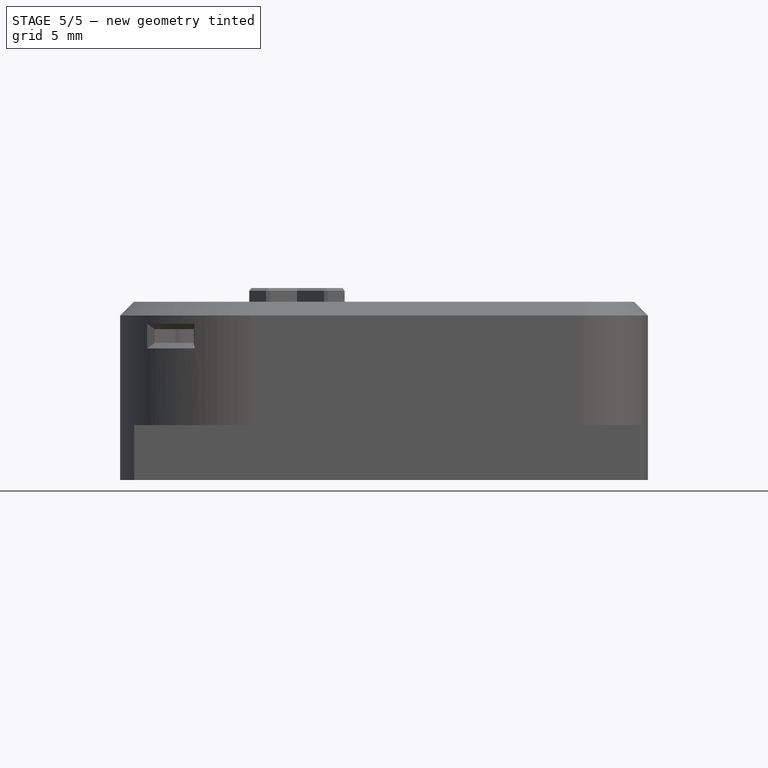
[diagram: stage 5 of 5 — front view after this stage's code; geometry added in this stage tinted green]
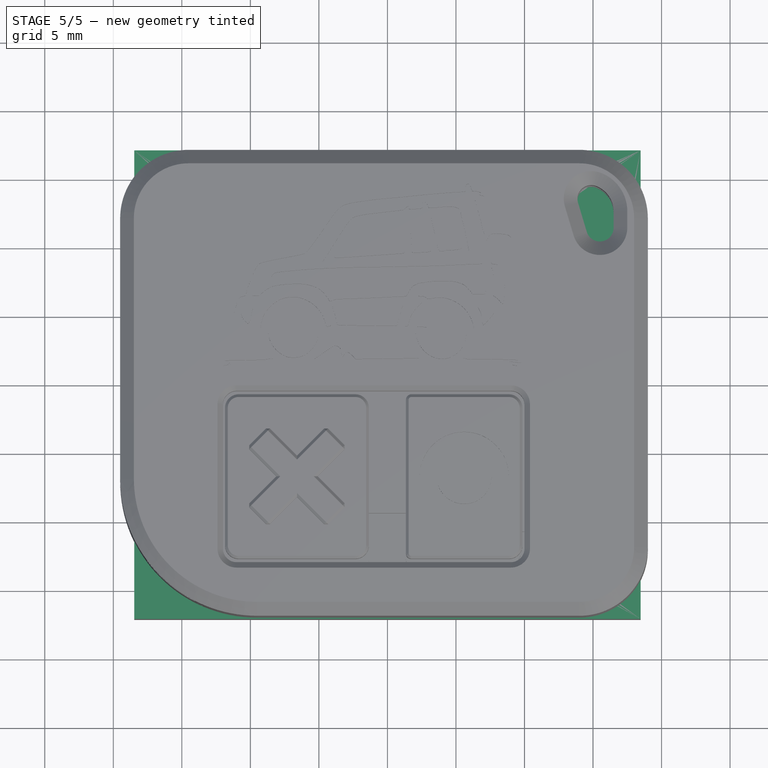
[diagram: stage 5 of 5 — top view after this stage's code; geometry added in this stage tinted green]
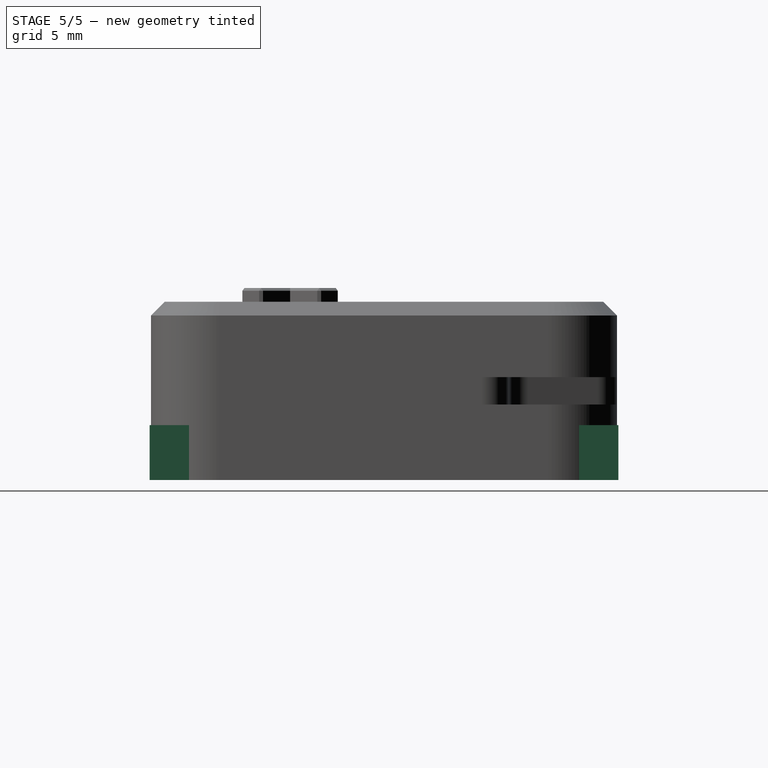
[diagram: stage 5 of 5 — right view after this stage's code; geometry added in this stage tinted green]
FEATURE [Sketcher::SketchObject] Sketch
  FullyConstrained = true
  MapMode = 5
  Support = -> [XY_Plane]
  sketch-geometry (8):
    g0: LineSegment StartX=-15.475 StartY=14.1 StartZ=0 EndX=15.475 EndY=14.1 EndZ=0
    g1: LineSegment StartX=15.475 StartY=14.1 StartZ=0 EndX=15.475 EndY=-14.1 EndZ=0
    g2: LineSegment StartX=15.475 StartY=-14.1 StartZ=0 EndX=-15.475 EndY=-14.1 EndZ=0
    g3: LineSegment StartX=-15.475 StartY=-14.1 StartZ=0 EndX=-15.475 EndY=14.1 EndZ=0
    g4: LineSegment StartX=-18.475 StartY=17.1 StartZ=0 EndX=18.475 EndY=17.1 EndZ=0
    g5: LineSegment StartX=18.475 StartY=17.1 StartZ=0 EndX=18.475 EndY=-17.1 EndZ=0
    g6: LineSegment StartX=18.475 StartY=-17.1 StartZ=0 EndX=-18.475 EndY=-17.1 EndZ=0
    g7: LineSegment StartX=-18.475 StartY=-17.1 StartZ=0 EndX=-18.475 EndY=17.1 EndZ=0
  constraints (24):
    c: Coincident(g0,g1)
    c: Coincident(g1,g2)
    c: Coincident(g2,g3)
    c: Coincident(g3,g0)
    c: Horizontal(g0)
    c: Horizontal(g2)
    c: Vertical(g1)
    c: Vertical(g3)
    c: DistanceY(g1,g1) = 28.2
    c: DistanceX(g0,g0) = 30.95
    c: DistanceX(g0,g-1) = 15.475
    c: DistanceY(g-1,g0) = 14.1
    c: Coincident(g4,g5)
    c: Coincident(g5,g6)
    c: Coincident(g6,g7)
    c: Coincident(g7,g4)
    c: Horizontal(g4)
    c: Horizontal(g6)
    c: Vertical(g5)
    c: Vertical(g7)
    c: DistanceX(g4,g0) = 3
    c: DistanceX(g0,g4) = 3
    c: DistanceY(g0,g4) = 3
    c: DistanceY(g6,g2) = 3
FEATURE [PartDesign::Pad] Pad
  Direction = (1,1,1)
  Length = 4
  Length2 = 100
  Profile = -> Sketch
  Type = 0
FEATURE [PartDesign::Chamfer] Chamfer
  Angle = 45
  Base = -> Pad [Edge14]
  BaseFeature = -> Pad
  ChamferType = 1
  FlipDirection = false
  Size = 13.5
  Size2 = 3.5
  SupportTransform = false
FEATURE [PartDesign::Fillet] Fillet
  Base = -> Chamfer [Edge3]
  BaseFeature = -> Chamfer
  Radius = 4
  SupportTransform = false
FEATURE [PartDesign::Chamfer] Chamfer001
  Angle = 45
  Base = -> Fillet [Edge26]
  BaseFeature = -> Fillet
  ChamferType = 1
  FlipDirection = false
  Size = 3.5
  Size2 = 12
  SupportTransform = false
FEATURE [Sketcher::SketchObject] Sketch001
  FullyConstrained = true
  MapMode = 5
  Placement = pos=(0,0,4) rot=(0,0,1;0rad)
  Support = -> [Chamfer001]
  sketch-geometry (4):
    g0: LineSegment StartX=10.825 StartY=-14.1 StartZ=0 EndX=15.475 EndY=-14.1 EndZ=0
    g1: LineSegment StartX=15.475 StartY=-14.1 StartZ=0 EndX=15.475 EndY=-1.6 EndZ=0
    g2: LineSegment StartX=15.475 StartY=-1.6 StartZ=0 EndX=12.975 EndY=-1.6 EndZ=0
    g3: LineSegment StartX=12.975 StartY=-1.6 StartZ=0 EndX=10.825 EndY=-14.1 EndZ=0
  constraints (12):
    c: Horizontal(g0)
    c: Coincident(g0,g1)
    c: Vertical(g1)
    c: Coincident(g1,g2)
    c: Coincident(g2,g3)
    c: Coincident(g3,g0)
    c: DistanceX(g-1,g0) = 15.475
    c: DistanceY(g0,g-1) = 14.1
    c: DistanceY(g1,g1) = 12.5
    c: Horizontal(g2)
    c: DistanceX(g0,g0) = 4.65
    c: DistanceX(g2,g2) = 2.5
FEATURE [PartDesign::Pad] Pad001
  BaseFeature = -> Chamfer001
  Direction = (1,1,1)
  Length = 10
  Length2 = 100
  Profile = -> Sketch001
  Type = 3
  UpToFace = -> Chamfer001 [Face1]
FEATURE [PartDesign::Fillet] Fillet001
  Base = -> Pad001 [Edge42]
  BaseFeature = -> Pad001
  Radius = 1.5
  SupportTransform = false
FEATURE [PartDesign::Fillet] Fillet002
  Base = -> Fillet001 [Edge29,Edge28,Edge23]
  BaseFeature = -> Fillet001
  Radius = 4
  SupportTransform = false
FEATURE [PartDesign::Fillet] Fillet003
  Base = -> Fillet002 [Edge42,Edge44]
  BaseFeature = -> Fillet002
  Radius = 15
  Refine = true
  SupportTransform = false
FEATURE [PartDesign::Fillet] Fillet004
  Base = -> Fillet003 [Edge49]
  BaseFeature = -> Fillet003
  Radius = 0.5
  SupportTransform = false
FEATURE [PartDesign::Fillet] Fillet005
  Base = -> Pad002 [Edge17]
  BaseFeature = -> Pad002
  Radius = 2
  SupportTransform = false
FEATURE [PartDesign::Fillet] Fillet006
  Base = -> Fillet005 [Edge3,Edge16]
  BaseFeature = -> Fillet005
  Radius = 1
  SupportTransform = false
FEATURE [PartDesign::Fillet] Fillet007
  Base = -> Fillet006 [Edge29]
  BaseFeature = -> Fillet006
  Radius = 5
  SupportTransform = false
FEATURE [PartDesign::Fillet] Fillet008
  Base = -> Fillet007 [Edge18]
  BaseFeature = -> Fillet007
  Radius = 10
  SupportTransform = false
FEATURE [PartDesign::Fillet] Fillet009
  Base = -> Fillet008 [Edge15,Edge21]
  BaseFeature = -> Fillet008
  Radius = 5
  SupportTransform = false
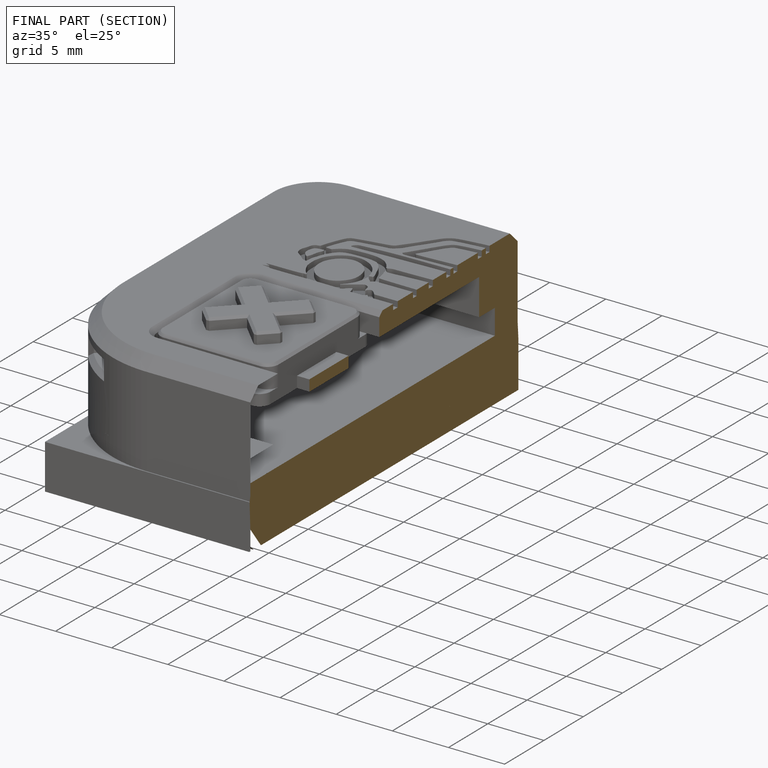
[diagram: finished part — half-section view (interior)]
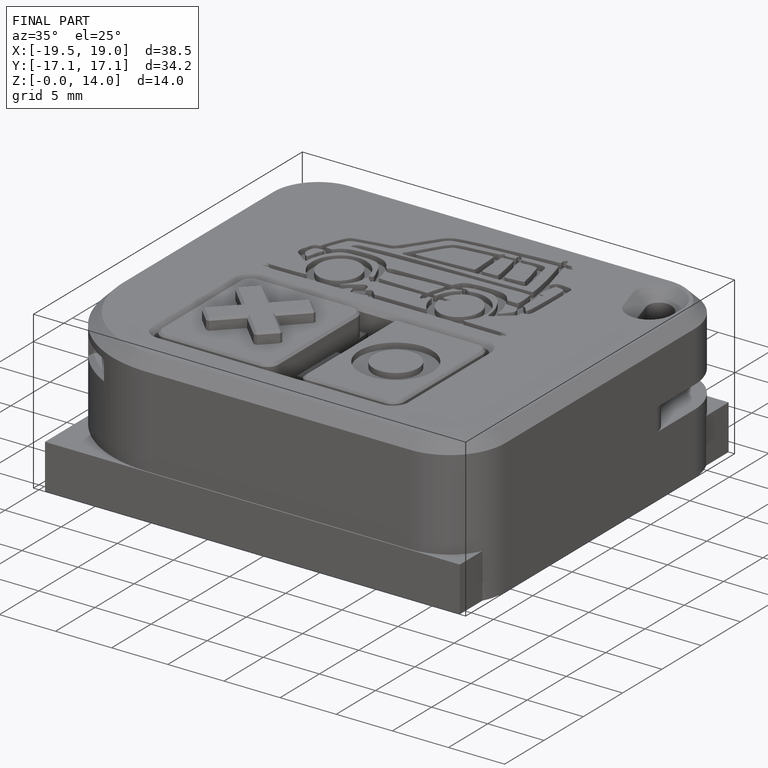
[diagram: finished part — iso view with bounding-box wireframe]
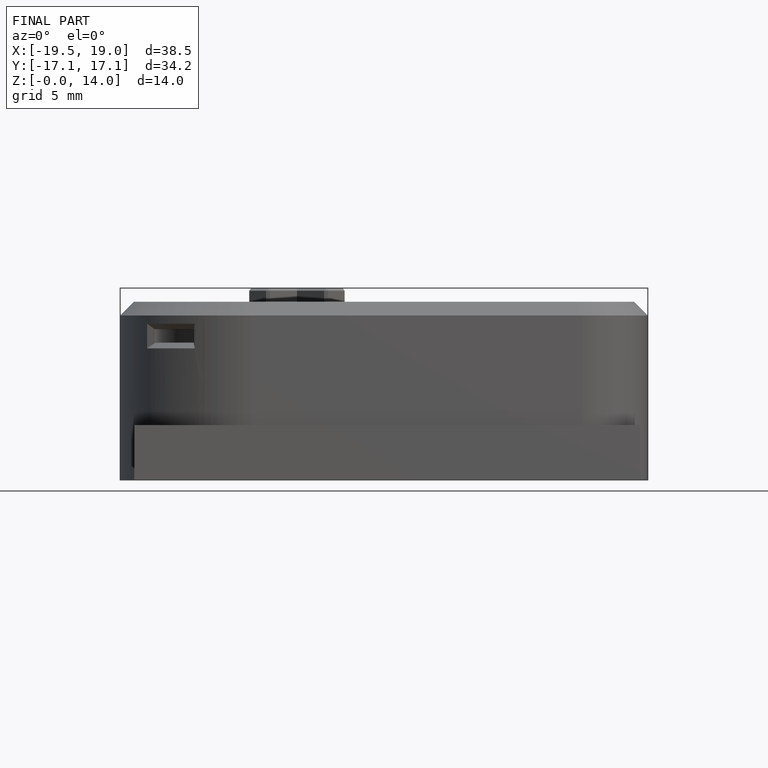
[diagram: finished part — front view with bounding-box wireframe]
